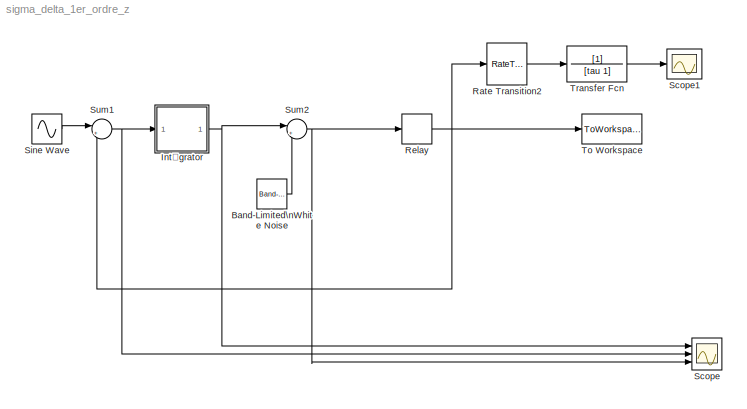
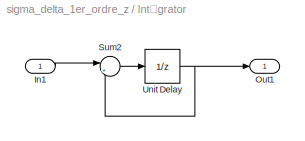
MODEL sigma_delta_1er_ordre_z
KIND model
BLOCK [Reference] Band-Limited\nWhite Noise  REF=simulink/Sources/Band-Limited\nWhite Noise
  Cov = [noise]
  Ports = [0, 1]
  SID = 1
  SourceBlock = simulink/Sources/Band-Limited\nWhite Noise
  SourceType = Band-Limited White Noise.
  Ts = 1/fck
  VectorParams1D = on
  seed = [23341]
BLOCK [SubSystem] Intégrator
  Ports = [1, 1]
  RequestExecContextInheritance = off
  SID = 2
  Variant = off
BLOCK [Inport] Intégrator/In1
  IconDisplay = Port number
  SID = 3
BLOCK [Outport] Intégrator/Out1
  IconDisplay = Port number
  SID = 6
BLOCK [Sum] Intégrator/Sum2
  IconShape = round
  InputSameDT = off
  Inputs = |++
  OutDataTypeStr = Inherit: Inherit via internal rule
  Ports = [2, 1]
  SID = 4
  SaturateOnIntegerOverflow = off
BLOCK [UnitDelay] Intégrator/Unit Delay
  SID = 5
  SampleTime = 1/fck
BLOCK [RateTransition] Rate Transition2
  SID = 7
BLOCK [Relay] Relay
  OffOutputValue = -1
  OffSwitchValue = 0
  OnSwitchValue = 0
  SID = 8
  SampleTime = 1/fck
BLOCK [Scope] Scope
  NumInputPorts = 3
  Ports = [3]
  SID = 9
  ScopeSpecificationString = C++SS(StrPVP('Location','[1, 45, 1017, 715]'),StrPVP('Open','off'),StrPVP('ZoomMode','xonly'),MxPVP('AxesTitles',24,'struct(''axes1'',''%<SignalLabel>'',''axes2'',''%<SignalLabel>'',''axes3'',''%<SignalLabel>'')'),StrPVP('YMin','-0.0025~-2~-1750'),StrPVP('YMax','0.03~2~1500'),StrPVP('DataFormat','StructureWithTime'),StrPVP('LimitDataPoints','off'),StrPVP('Decimation','1'),StrPVP('BlockParamSampleI...<+13ch>
BLOCK [Scope] Scope1
  Ports = [1]
  SID = 10
  ScopeSpecificationString = C++SS(StrPVP('Location','[5, 49, 1021, 719]'),StrPVP('Open','off'),StrPVP('ZoomMode','yonly'),MxPVP('AxesTitles',24,'struct(''axes1'',''%<SignalLabel>'')'),StrPVP('YMin','-1'),StrPVP('YMax','1'),StrPVP('SaveName','ScopeData1'),StrPVP('DataFormat','StructureWithTime'),StrPVP('LimitDataPoints','off'),StrPVP('Decimation','1'),StrPVP('BlockParamSampleInput','off'))
BLOCK [Sin] Sine Wave
  Amplitude = 0.5
  Frequency = 2*pi*10
  Ports = [0, 1]
  SID = 11
  SampleTime = 1/fck
BLOCK [Sum] Sum1
  IconShape = round
  InputSameDT = off
  Inputs = |+-
  OutDataTypeStr = Inherit: Inherit via internal rule
  Ports = [2, 1]
  SID = 12
  SaturateOnIntegerOverflow = off
BLOCK [Sum] Sum2
  IconShape = round
  InputSameDT = off
  Inputs = |++
  OutDataTypeStr = Inherit: Inherit via internal rule
  Ports = [2, 1]
  SID = 13
  SaturateOnIntegerOverflow = off
BLOCK [ToWorkspace] To Workspace
  MaxDataPoints = fck
  Ports = [1]
  SID = 14
  SampleTime = 1/fck
  VariableName = simout
BLOCK [TransferFcn] Transfer Fcn
  Denominator = [tau 1]
  SID = 15
LINE Band-Limited\nWhite Noise:1 -> Sum2:2
LINE Intégrator/In1:1 -> Intégrator/Sum2:1
LINE Intégrator/Sum2:1 -> Intégrator/Unit Delay:1
NET Intégrator/Unit Delay:1 -> Intégrator/Out1:1, Intégrator/Sum2:2
NET Intégrator:1 -> Scope:1, Sum2:1
LINE Rate Transition2:1 -> Transfer Fcn:1
NET Relay:1 -> Rate Transition2:1, Sum1:2, To Workspace:1
LINE Sine Wave:1 -> Sum1:1
NET Sum1:1 -> Intégrator:1, Scope:2
NET Sum2:1 -> Relay:1, Scope:3
LINE Transfer Fcn:1 -> Scope1:1
note: NET lines group one-source signal fan-out (src -> all destinations, sorted); 1:1 wires keep LINE
